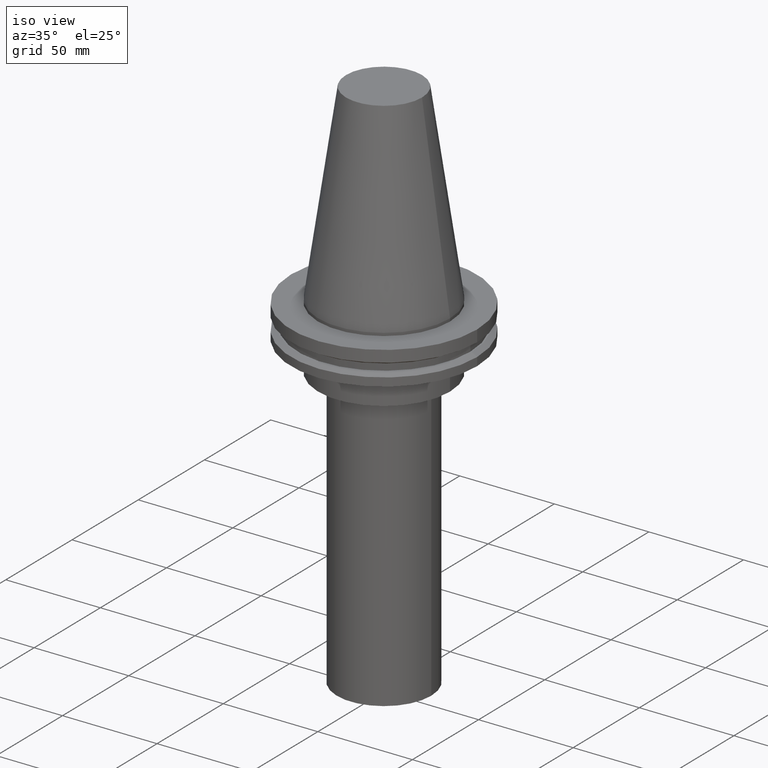
[diagram: clean part render]
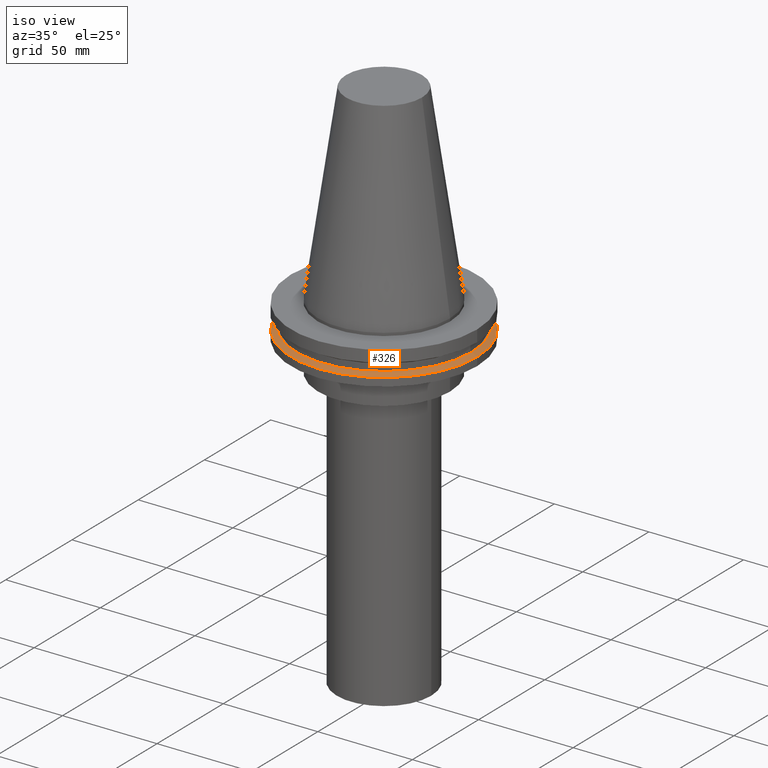
[diagram: same view with one face highlighted and labeled with its STEP entity id]
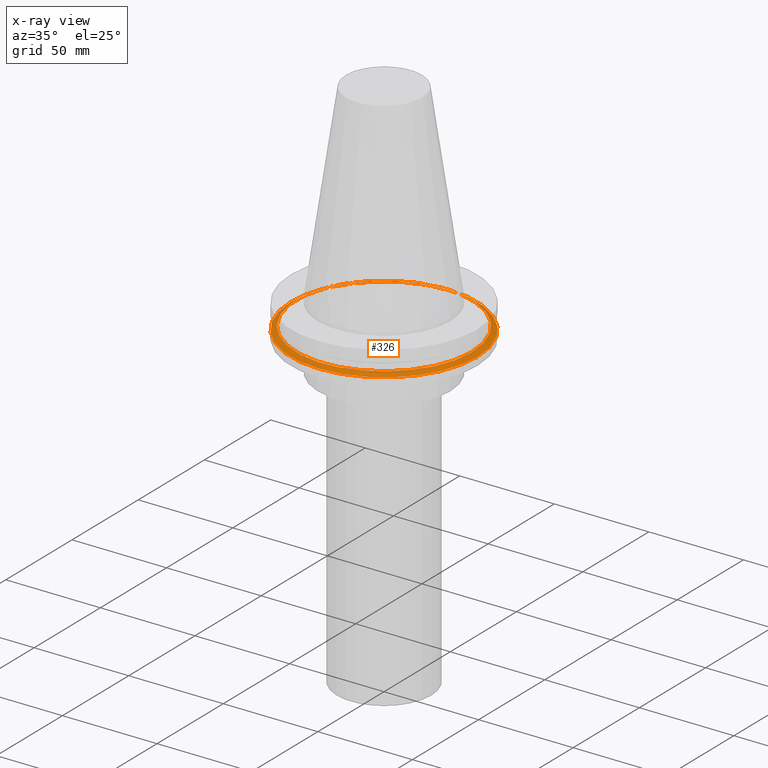
[diagram: x-ray of the same camera — body ghosted, the highlighted face saturated]
A machine part, iso view. The second image highlights one B-rep face of the part: STEP entity #326.
The next image is the same camera in x-ray: the body ghosted, the highlighted face saturated — about 4% of this face is hidden behind the body in this view.
In plain terms, the highlighted conical surface has half-angle 60 deg.
Its self-contained STEP definition (entity closure, byte-faithful):
#4 = EDGE_LOOP ( 'NONE', ( #249 ) ) ;
#19 = AXIS2_PLACEMENT_3D ( 'NONE', #200, #290, #195 ) ;
#28 = AXIS2_PLACEMENT_3D ( 'NONE', #175, #393, #209 ) ;
#29 = VERTEX_POINT ( 'NONE', #391 ) ;
#61 = EDGE_CURVE ( 'NONE', #29, #29, #331, .T. ) ;
#72 = EDGE_CURVE ( 'NONE', #90, #90, #302, .T. ) ;
#90 = VERTEX_POINT ( 'NONE', #207 ) ;
#102 = CONICAL_SURFACE ( 'NONE', #28, 49.21499999999998920, 1.047197551196554333 ) ;
#147 = FACE_OUTER_BOUND ( 'NONE', #242, .T. ) ;
#156 = AXIS2_PLACEMENT_3D ( 'NONE', #381, #319, #192 ) ;
#175 = CARTESIAN_POINT ( 'NONE',  ( 0.000000000000000000, 0.000000000000000000, -14.65761014474876944 ) ) ;
#192 = DIRECTION ( 'NONE',  ( 1.000000000000000000, 0.000000000000000000, 0.000000000000000000 ) ) ;
#195 = DIRECTION ( 'NONE',  ( 1.000000000000000000, 0.000000000000000000, 0.000000000000000000 ) ) ;
#200 = CARTESIAN_POINT ( 'NONE',  ( 0.000000000000000000, 0.000000000000000000, -13.05499999999999794 ) ) ;
#202 = FACE_BOUND ( 'NONE', #4, .T. ) ;
#207 = CARTESIAN_POINT ( 'NONE',  ( 46.43919780457007818, 0.000000000000000000, -13.05499999999999794 ) ) ;
#209 = DIRECTION ( 'NONE',  ( -1.000000000000000000, 0.000000000000000000, 0.000000000000000000 ) ) ;
#242 = EDGE_LOOP ( 'NONE', ( #268 ) ) ;
#249 = ORIENTED_EDGE ( 'NONE', *, *, #72, .F. ) ;
#268 = ORIENTED_EDGE ( 'NONE', *, *, #61, .T. ) ;
#290 = DIRECTION ( 'NONE',  ( -0.000000000000000000, -0.000000000000000000, 1.000000000000000000 ) ) ;
#302 = CIRCLE ( 'NONE', #19, 46.43919780457007818 ) ;
#319 = DIRECTION ( 'NONE',  ( -0.000000000000000000, -0.000000000000000000, 1.000000000000000000 ) ) ;
#326 = ADVANCED_FACE ( 'NONE', ( #202, #147 ), #102, .T. ) ;
#331 = CIRCLE ( 'NONE', #156, 49.21499999999998920 ) ;
#381 = CARTESIAN_POINT ( 'NONE',  ( 0.000000000000000000, 0.000000000000000000, -14.65761014474876944 ) ) ;
#391 = CARTESIAN_POINT ( 'NONE',  ( 49.21499999999998920, 0.000000000000000000, -14.65761014474876944 ) ) ;
#393 = DIRECTION ( 'NONE',  ( 0.000000000000000000, 0.000000000000000000, -1.000000000000000000 ) ) ;